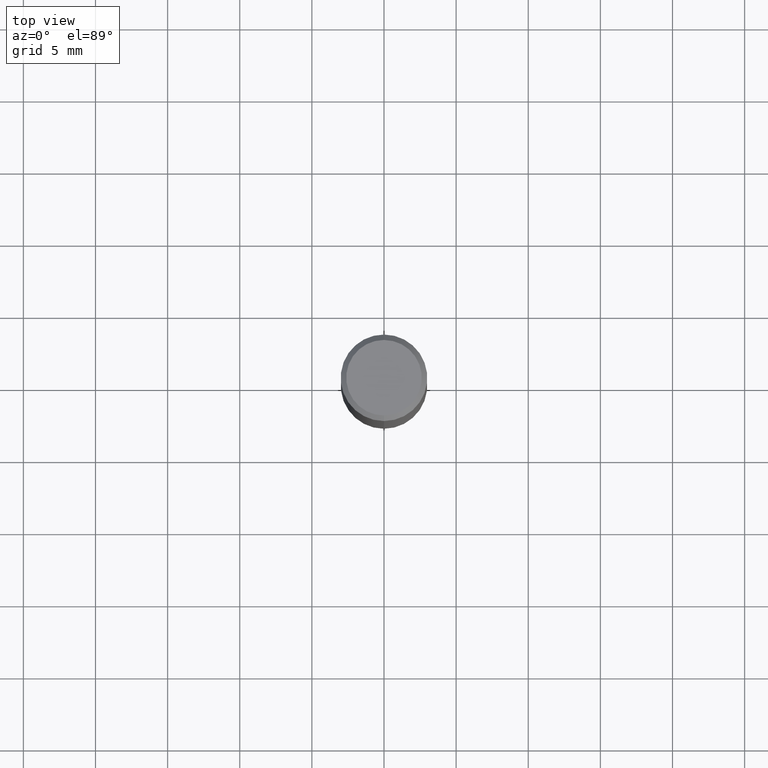
[diagram: clean part render]
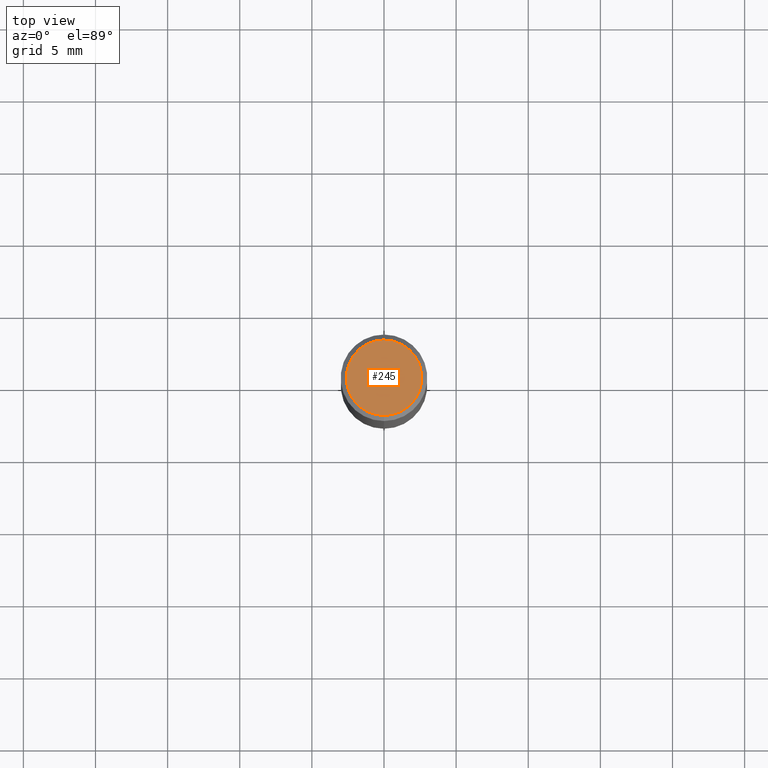
[diagram: same view with one face highlighted and labeled with its STEP entity id]
A machine part, top view. The second image highlights one B-rep face of the part: STEP entity #245.
In plain terms, the highlighted planar face has unit normal (0, -0, -1).
Its self-contained STEP definition (entity closure, byte-faithful):
#11 = ORIENTED_EDGE ( 'NONE', *, *, #114, .T. ) ;
#23 = PLANE ( 'NONE',  #90 ) ;
#90 = AXIS2_PLACEMENT_3D ( 'NONE', #224, #133, #366 ) ;
#113 = CIRCLE ( 'NONE', #291, 0.1030999999999999833 ) ;
#114 = EDGE_CURVE ( 'NONE', #214, #145, #304, .T. ) ;
#133 = DIRECTION ( 'NONE',  ( 2.445896049608157514E-29, -3.490869501944193805E-15, -1.000000000000000000 ) ) ;
#145 = VERTEX_POINT ( 'NONE', #470 ) ;
#158 = CARTESIAN_POINT ( 'NONE',  ( 6.246212832853775766E-46, -8.914816263084806715E-32, -2.553752369751953708E-17 ) ) ;
#171 = EDGE_LOOP ( 'NONE', ( #11, #288 ) ) ;
#173 = CARTESIAN_POINT ( 'NONE',  ( 7.723156721521010848E-16, 0.1030999999999999833, -3.854461693479658168E-16 ) ) ;
#182 = CARTESIAN_POINT ( 'NONE',  ( 6.246212832853775766E-46, -8.914816263084806715E-32, -2.553752369751953708E-17 ) ) ;
#214 = VERTEX_POINT ( 'NONE', #173 ) ;
#224 = CARTESIAN_POINT ( 'NONE',  ( 7.199434520694539070E-16, 0.1030999999999999833, -3.726774074992060082E-16 ) ) ;
#238 = DIRECTION ( 'NONE',  ( -6.982962677686265922E-15, -1.000000000000000000, 3.490869501944193410E-15 ) ) ;
#239 = DIRECTION ( 'NONE',  ( -2.445896049608158074E-29, 3.490869501944193410E-15, 1.000000000000000000 ) ) ;
#245 = ADVANCED_FACE ( 'NONE', ( #420 ), #23, .F. ) ;
#251 = EDGE_CURVE ( 'NONE', #145, #214, #113, .T. ) ;
#288 = ORIENTED_EDGE ( 'NONE', *, *, #251, .T. ) ;
#289 = DIRECTION ( 'NONE',  ( -6.982962677686265922E-15, -1.000000000000000000, 3.490869501944193410E-15 ) ) ;
#291 = AXIS2_PLACEMENT_3D ( 'NONE', #182, #496, #289 ) ;
#304 = CIRCLE ( 'NONE', #440, 0.1030999999999999833 ) ;
#366 = DIRECTION ( 'NONE',  ( 6.982962677686265922E-15, 1.000000000000000000, -3.490869501944193805E-15 ) ) ;
#420 = FACE_OUTER_BOUND ( 'NONE', #171, .T. ) ;
#440 = AXIS2_PLACEMENT_3D ( 'NONE', #158, #239, #238 ) ;
#470 = CARTESIAN_POINT ( 'NONE',  ( -7.587710785535310407E-16, -0.1030999999999999833, 3.343711219529267796E-16 ) ) ;
#496 = DIRECTION ( 'NONE',  ( -2.445896049608158074E-29, 3.490869501944193410E-15, 1.000000000000000000 ) ) ;